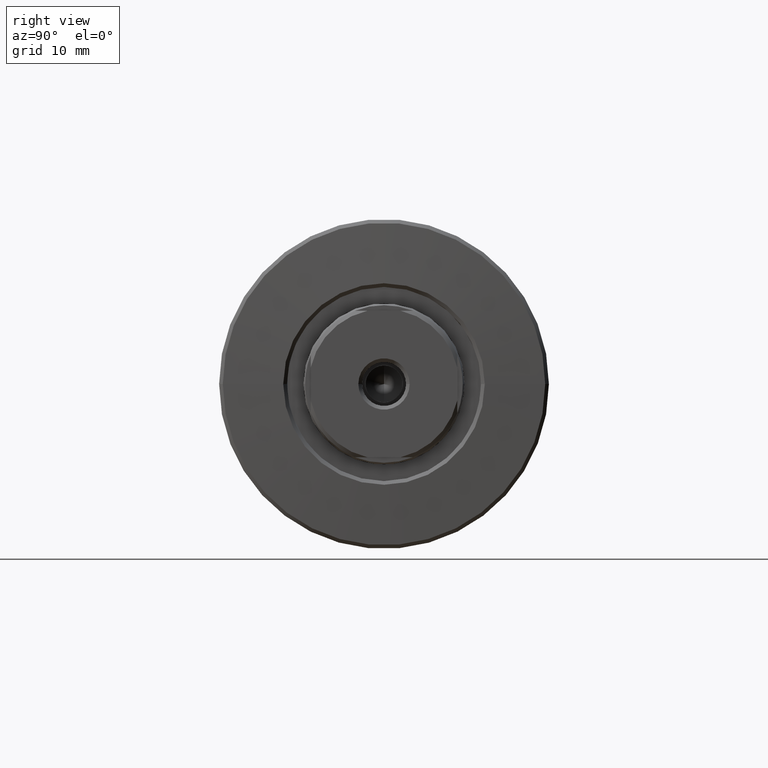
[diagram: clean part render]
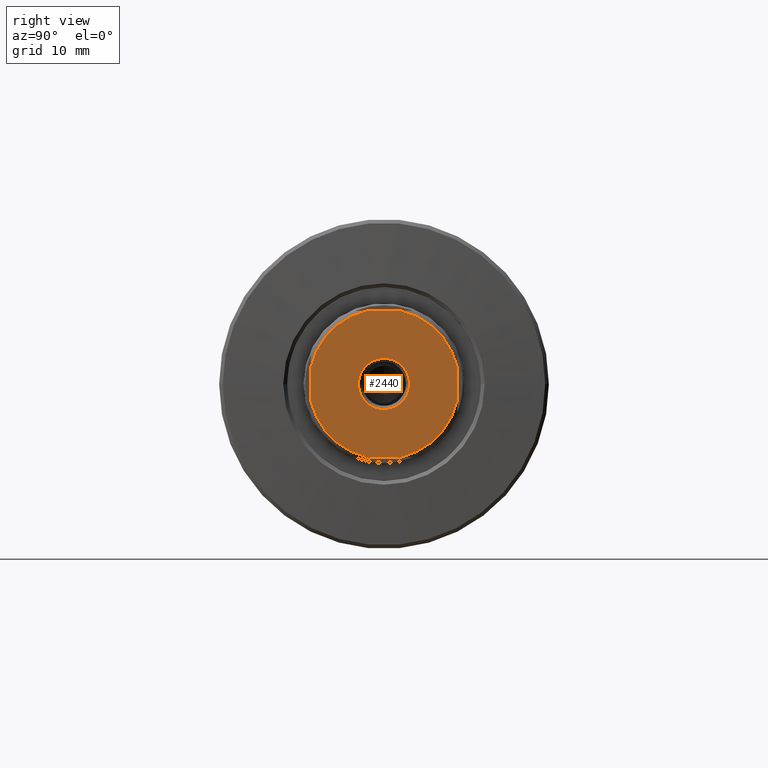
[diagram: same view with one face highlighted and labeled with its STEP entity id]
A machine part, right view. The second image highlights one B-rep face of the part: STEP entity #2440.
In plain terms, the highlighted planar face has unit normal (-1, -0, 0).
Its self-contained STEP definition (entity closure, byte-faithful):
#7 = FACE_OUTER_BOUND ( 'NONE', #1885, .T. ) ;
#12 = CARTESIAN_POINT ( 'NONE',  ( 76.99999999999992895, -3.944933459516154706, 9.999999999999998224 ) ) ;
#21 = VERTEX_POINT ( 'NONE', #1977 ) ;
#28 = CIRCLE ( 'NONE', #1286, 3.500000000000250466 ) ;
#30 = CARTESIAN_POINT ( 'NONE',  ( 77.00000000000000000, -3.500000000001648459, 4.286263797016192162E-16 ) ) ;
#93 = CARTESIAN_POINT ( 'NONE',  ( 77.00000000000004263, 2.249999999999858780, 10.00000000000000000 ) ) ;
#157 = DIRECTION ( 'NONE',  ( 0.000000000000000000, -6.596018008081577059E-16, 1.000000000000000000 ) ) ;
#215 = DIRECTION ( 'NONE',  ( -1.000000000000000000, -1.069542322069065801E-17, -0.000000000000000000 ) ) ;
#219 = EDGE_CURVE ( 'NONE', #2262, #1344, #885, .T. ) ;
#299 = CARTESIAN_POINT ( 'NONE',  ( 77.00000000000007105, 3.944933459513603857, -9.999999999999996447 ) ) ;
#352 = VERTEX_POINT ( 'NONE', #2081 ) ;
#368 = VERTEX_POINT ( 'NONE', #1508 ) ;
#403 = CARTESIAN_POINT ( 'NONE',  ( 77.00000000000000000, 3.499999999998968825, 0.000000000000000000 ) ) ;
#415 = ORIENTED_EDGE ( 'NONE', *, *, #1562, .F. ) ;
#433 = EDGE_CURVE ( 'NONE', #1833, #1406, #633, .T. ) ;
#464 = EDGE_CURVE ( 'NONE', #1833, #21, #542, .T. ) ;
#514 = EDGE_CURVE ( 'NONE', #883, #352, #2033, .T. ) ;
#539 = EDGE_LOOP ( 'NONE', ( #2089, #2075 ) ) ;
#542 = CIRCLE ( 'NONE', #887, 10.24999999999998046 ) ;
#588 = DIRECTION ( 'NONE',  ( 0.000000000000000000, -1.000000000000000000, 0.000000000000000000 ) ) ;
#633 = LINE ( 'NONE', #12, #1242 ) ;
#643 = CARTESIAN_POINT ( 'NONE',  ( 77.00000000000000000, -1.276093895609017638E-12, 0.000000000000000000 ) ) ;
#660 = VECTOR ( 'NONE', #157, 1000.000000000000000 ) ;
#663 = CARTESIAN_POINT ( 'NONE',  ( 77.00000000000000000, 8.235475879931806342E-16, 0.000000000000000000 ) ) ;
#668 = CARTESIAN_POINT ( 'NONE',  ( 77.00000000000000000, 9.999999999998721023, 2.250000000005536016 ) ) ;
#727 = VERTEX_POINT ( 'NONE', #2167 ) ;
#728 = DIRECTION ( 'NONE',  ( 1.069542322069065801E-17, -1.000000000000000000, 0.000000000000000000 ) ) ;
#762 = PLANE ( 'NONE',  #1097 ) ;
#773 = EDGE_CURVE ( 'NONE', #727, #368, #845, .T. ) ;
#845 = CIRCLE ( 'NONE', #2390, 10.24999999999998046 ) ;
#883 = VERTEX_POINT ( 'NONE', #1231 ) ;
#885 = CIRCLE ( 'NONE', #2112, 3.500000000000250466 ) ;
#887 = AXIS2_PLACEMENT_3D ( 'NONE', #1054, #1592, #1986 ) ;
#991 = ORIENTED_EDGE ( 'NONE', *, *, #514, .T. ) ;
#1004 = ORIENTED_EDGE ( 'NONE', *, *, #1017, .F. ) ;
#1007 = ORIENTED_EDGE ( 'NONE', *, *, #464, .T. ) ;
#1017 = EDGE_CURVE ( 'NONE', #2398, #352, #2383, .T. ) ;
#1054 = CARTESIAN_POINT ( 'NONE',  ( 77.00000000000000000, 8.235475879931805356E-16, 0.000000000000000000 ) ) ;
#1097 = AXIS2_PLACEMENT_3D ( 'NONE', #2247, #1515, #728 ) ;
#1109 = EDGE_CURVE ( 'NONE', #2398, #1406, #2036, .T. ) ;
#1134 = FACE_BOUND ( 'NONE', #539, .T. ) ;
#1168 = VECTOR ( 'NONE', #1409, 1000.000000000000000 ) ;
#1189 = ORIENTED_EDGE ( 'NONE', *, *, #1109, .T. ) ;
#1200 = DIRECTION ( 'NONE',  ( -1.000000000000000000, -1.069542322069065801E-17, -0.000000000000000000 ) ) ;
#1224 = ORIENTED_EDGE ( 'NONE', *, *, #433, .F. ) ;
#1231 = CARTESIAN_POINT ( 'NONE',  ( 77.00000000000004263, 2.249999999999904521, -9.999999999999996447 ) ) ;
#1242 = VECTOR ( 'NONE', #1391, 1000.000000000000000 ) ;
#1245 = LINE ( 'NONE', #299, #1168 ) ;
#1286 = AXIS2_PLACEMENT_3D ( 'NONE', #643, #215, #588 ) ;
#1344 = VERTEX_POINT ( 'NONE', #403 ) ;
#1391 = DIRECTION ( 'NONE',  ( 1.758938135488420707E-14, 1.000000000000000000, 2.198672669360525686E-16 ) ) ;
#1396 = DIRECTION ( 'NONE',  ( 0.000000000000000000, -1.000000000000000000, 0.000000000000000000 ) ) ;
#1406 = VERTEX_POINT ( 'NONE', #93 ) ;
#1409 = DIRECTION ( 'NONE',  ( -1.758938135488420707E-14, -1.000000000000000000, -4.397345338721051373E-16 ) ) ;
#1418 = EDGE_CURVE ( 'NONE', #1344, #2262, #28, .T. ) ;
#1508 = CARTESIAN_POINT ( 'NONE',  ( 76.99999999999995737, -2.249999999999908518, -10.00000000000000000 ) ) ;
#1515 = DIRECTION ( 'NONE',  ( -1.000000000000000000, -1.069542322069065801E-17, 0.000000000000000000 ) ) ;
#1553 = CARTESIAN_POINT ( 'NONE',  ( 77.00000000000000000, -1.276093895609017638E-12, 0.000000000000000000 ) ) ;
#1562 = EDGE_CURVE ( 'NONE', #727, #21, #1661, .T. ) ;
#1581 = DIRECTION ( 'NONE',  ( 0.000000000000000000, -1.000000000000000000, 0.000000000000000000 ) ) ;
#1583 = DIRECTION ( 'NONE',  ( 1.000000000000000000, 1.069542322069065801E-17, 0.000000000000000000 ) ) ;
#1585 = CARTESIAN_POINT ( 'NONE',  ( 77.00000000000000000, 8.235475879931806342E-16, 0.000000000000000000 ) ) ;
#1592 = DIRECTION ( 'NONE',  ( 1.000000000000000000, 1.069542322069065801E-17, 0.000000000000000000 ) ) ;
#1609 = DIRECTION ( 'NONE',  ( 0.000000000000000000, 2.198672669360525686E-16, -1.000000000000000000 ) ) ;
#1661 = LINE ( 'NONE', #1840, #660 ) ;
#1662 = ORIENTED_EDGE ( 'NONE', *, *, #1968, .F. ) ;
#1783 = DIRECTION ( 'NONE',  ( 1.000000000000000000, 1.069542322069065801E-17, 0.000000000000000000 ) ) ;
#1809 = CARTESIAN_POINT ( 'NONE',  ( 77.00000000000000000, 8.235475879931807328E-16, 0.000000000000000000 ) ) ;
#1833 = VERTEX_POINT ( 'NONE', #2315 ) ;
#1838 = AXIS2_PLACEMENT_3D ( 'NONE', #663, #1583, #2381 ) ;
#1840 = CARTESIAN_POINT ( 'NONE',  ( 76.99999999999982947, -10.00000000000127365, -3.944933459514880614 ) ) ;
#1885 = EDGE_LOOP ( 'NONE', ( #1662, #991, #1004, #1189, #1224, #1007, #415, #2430 ) ) ;
#1923 = DIRECTION ( 'NONE',  ( 1.000000000000000000, 1.069542322069065801E-17, 0.000000000000000000 ) ) ;
#1968 = EDGE_CURVE ( 'NONE', #883, #368, #1245, .T. ) ;
#1974 = DIRECTION ( 'NONE',  ( 0.000000000000000000, -1.000000000000000000, 8.881784197001252323E-16 ) ) ;
#1977 = CARTESIAN_POINT ( 'NONE',  ( 76.99999999999982947, -10.00000000000127720, 2.249999999994230393 ) ) ;
#1986 = DIRECTION ( 'NONE',  ( 0.000000000000000000, -1.000000000000000000, 0.000000000000000000 ) ) ;
#2029 = AXIS2_PLACEMENT_3D ( 'NONE', #1809, #1783, #1974 ) ;
#2033 = CIRCLE ( 'NONE', #2029, 10.24999999999997691 ) ;
#2036 = CIRCLE ( 'NONE', #1838, 10.24999999999996803 ) ;
#2075 = ORIENTED_EDGE ( 'NONE', *, *, #219, .T. ) ;
#2081 = CARTESIAN_POINT ( 'NONE',  ( 77.00000000000017053, 9.999999999998722799, -2.250000000005570655 ) ) ;
#2089 = ORIENTED_EDGE ( 'NONE', *, *, #1418, .T. ) ;
#2112 = AXIS2_PLACEMENT_3D ( 'NONE', #1553, #1200, #1581 ) ;
#2167 = CARTESIAN_POINT ( 'NONE',  ( 77.00000000000000000, -10.00000000000127365, -2.249999999994244160 ) ) ;
#2179 = CARTESIAN_POINT ( 'NONE',  ( 77.00000000000017053, 9.999999999998721023, 3.944933459514878837 ) ) ;
#2247 = CARTESIAN_POINT ( 'NONE',  ( 77.00000000000000000, -6.148574185495778962E-34, 0.000000000000000000 ) ) ;
#2262 = VERTEX_POINT ( 'NONE', #30 ) ;
#2315 = CARTESIAN_POINT ( 'NONE',  ( 76.99999999999995737, -2.249999999999906741, 10.00000000000000000 ) ) ;
#2356 = VECTOR ( 'NONE', #1609, 1000.000000000000000 ) ;
#2381 = DIRECTION ( 'NONE',  ( 0.000000000000000000, -1.000000000000000000, -8.881784197001252323E-16 ) ) ;
#2383 = LINE ( 'NONE', #2179, #2356 ) ;
#2390 = AXIS2_PLACEMENT_3D ( 'NONE', #1585, #1923, #1396 ) ;
#2398 = VERTEX_POINT ( 'NONE', #668 ) ;
#2430 = ORIENTED_EDGE ( 'NONE', *, *, #773, .T. ) ;
#2440 = ADVANCED_FACE ( 'NONE', ( #1134, #7 ), #762, .F. ) ;